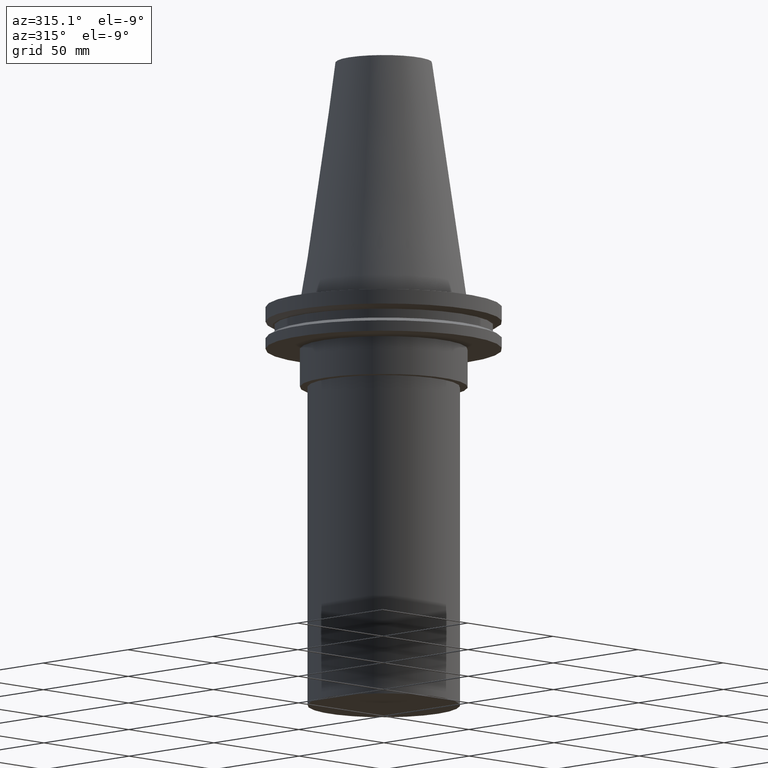
[diagram: clean part render]
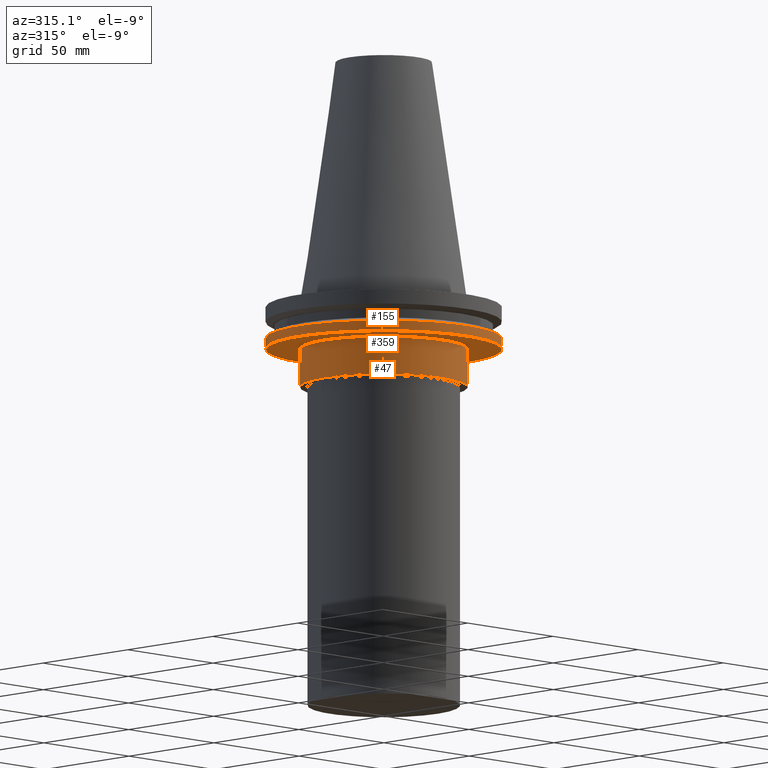
[diagram: same view with one multi-face feature highlighted, each face labeled with its STEP entity id]
A machine part, auxiliary view. The highlighted faces form ONE feature: a stepped (counterbored) hole: 2 coaxial cylindrical walls of radii 34.925 -> 49.215 mm joined by 1 annular planar shoulder face(s). The faces share edges in the B-rep.
Their STEP definitions:
[1] entity #155 (Cylinder):
#15 = DIRECTION ( 'NONE',  ( -0.000000000000000000, -0.000000000000000000, 1.000000000000000000 ) ) ;
#63 = DIRECTION ( 'NONE',  ( -0.000000000000000000, -0.000000000000000000, 1.000000000000000000 ) ) ;
#153 = CIRCLE ( 'NONE', #227, 49.21499999999998920 ) ;
#155 = ADVANCED_FACE ( 'NONE', ( #314, #368 ), #371, .T. ) ;
#160 = AXIS2_PLACEMENT_3D ( 'NONE', #185, #63, #183 ) ;
#163 = CARTESIAN_POINT ( 'NONE',  ( 49.21499999999998920, 0.000000000000000000, -14.65761014474876944 ) ) ;
#182 = ORIENTED_EDGE ( 'NONE', *, *, #265, .F. ) ;
#183 = DIRECTION ( 'NONE',  ( 1.000000000000000000, 0.000000000000000000, 0.000000000000000000 ) ) ;
#185 = CARTESIAN_POINT ( 'NONE',  ( 0.000000000000000000, 0.000000000000000000, 101.5999999999999943 ) ) ;
#190 = CARTESIAN_POINT ( 'NONE',  ( 49.21499999999998920, 0.000000000000000000, -19.04999999999999716 ) ) ;
#192 = DIRECTION ( 'NONE',  ( 1.000000000000000000, 0.000000000000000000, 0.000000000000000000 ) ) ;
#222 = VERTEX_POINT ( 'NONE', #163 ) ;
#227 = AXIS2_PLACEMENT_3D ( 'NONE', #317, #284, #192 ) ;
#241 = EDGE_LOOP ( 'NONE', ( #182 ) ) ;
#255 = EDGE_LOOP ( 'NONE', ( #370 ) ) ;
#265 = EDGE_CURVE ( 'NONE', #222, #222, #153, .T. ) ;
#284 = DIRECTION ( 'NONE',  ( -0.000000000000000000, -0.000000000000000000, 1.000000000000000000 ) ) ;
#314 = FACE_OUTER_BOUND ( 'NONE', #241, .T. ) ;
#317 = CARTESIAN_POINT ( 'NONE',  ( 0.000000000000000000, 0.000000000000000000, -14.65761014474876944 ) ) ;
#318 = VERTEX_POINT ( 'NONE', #190 ) ;
#348 = CARTESIAN_POINT ( 'NONE',  ( 0.000000000000000000, 0.000000000000000000, -19.04999999999999716 ) ) ;
#350 = CIRCLE ( 'NONE', #379, 49.21499999999998920 ) ;
#364 = EDGE_CURVE ( 'NONE', #318, #318, #350, .T. ) ;
#368 = FACE_OUTER_BOUND ( 'NONE', #255, .T. ) ;
#370 = ORIENTED_EDGE ( 'NONE', *, *, #364, .T. ) ;
#371 = CYLINDRICAL_SURFACE ( 'NONE', #160, 49.21499999999998920 ) ;
#375 = DIRECTION ( 'NONE',  ( 1.000000000000000000, 0.000000000000000000, 0.000000000000000000 ) ) ;
#379 = AXIS2_PLACEMENT_3D ( 'NONE', #348, #15, #375 ) ;
[2] entity #47 (Cylinder):
#14 = CARTESIAN_POINT ( 'NONE',  ( 34.92499999999999716, 0.000000000000000000, -19.04999999999999716 ) ) ;
#20 = EDGE_CURVE ( 'NONE', #352, #352, #197, .T. ) ;
#27 = EDGE_LOOP ( 'NONE', ( #111 ) ) ;
#37 = EDGE_LOOP ( 'NONE', ( #117 ) ) ;
#42 = DIRECTION ( 'NONE',  ( 1.000000000000000000, 0.000000000000000000, 0.000000000000000000 ) ) ;
#44 = AXIS2_PLACEMENT_3D ( 'NONE', #211, #55, #334 ) ;
#47 = ADVANCED_FACE ( 'NONE', ( #325, #204 ), #299, .T. ) ;
#55 = DIRECTION ( 'NONE',  ( -0.000000000000000000, -0.000000000000000000, 1.000000000000000000 ) ) ;
#111 = ORIENTED_EDGE ( 'NONE', *, *, #20, .F. ) ;
#117 = ORIENTED_EDGE ( 'NONE', *, *, #290, .T. ) ;
#134 = CARTESIAN_POINT ( 'NONE',  ( 34.92499999999999716, 0.000000000000000000, -35.00000000000000000 ) ) ;
#148 = CARTESIAN_POINT ( 'NONE',  ( 0.000000000000000000, 0.000000000000000000, -19.04999999999999716 ) ) ;
#181 = AXIS2_PLACEMENT_3D ( 'NONE', #148, #232, #202 ) ;
#193 = VERTEX_POINT ( 'NONE', #134 ) ;
#197 = CIRCLE ( 'NONE', #181, 34.92499999999999716 ) ;
#202 = DIRECTION ( 'NONE',  ( 1.000000000000000000, 0.000000000000000000, 0.000000000000000000 ) ) ;
#204 = FACE_OUTER_BOUND ( 'NONE', #37, .T. ) ;
#211 = CARTESIAN_POINT ( 'NONE',  ( 0.000000000000000000, 0.000000000000000000, 101.5999999999999943 ) ) ;
#223 = CARTESIAN_POINT ( 'NONE',  ( 0.000000000000000000, 0.000000000000000000, -35.00000000000000000 ) ) ;
#232 = DIRECTION ( 'NONE',  ( -0.000000000000000000, -0.000000000000000000, 1.000000000000000000 ) ) ;
#290 = EDGE_CURVE ( 'NONE', #193, #193, #342, .T. ) ;
#299 = CYLINDRICAL_SURFACE ( 'NONE', #44, 34.92499999999999716 ) ;
#307 = AXIS2_PLACEMENT_3D ( 'NONE', #223, #351, #42 ) ;
#325 = FACE_OUTER_BOUND ( 'NONE', #27, .T. ) ;
#334 = DIRECTION ( 'NONE',  ( 1.000000000000000000, 0.000000000000000000, 0.000000000000000000 ) ) ;
#342 = CIRCLE ( 'NONE', #307, 34.92499999999999716 ) ;
#351 = DIRECTION ( 'NONE',  ( -0.000000000000000000, -0.000000000000000000, 1.000000000000000000 ) ) ;
#352 = VERTEX_POINT ( 'NONE', #14 ) ;
[3] entity #359 (Plane):
#2 = EDGE_LOOP ( 'NONE', ( #119 ) ) ;
#12 = CARTESIAN_POINT ( 'NONE',  ( 0.000000000000000000, 49.21499999999998920, -19.04999999999999716 ) ) ;
#14 = CARTESIAN_POINT ( 'NONE',  ( 34.92499999999999716, 0.000000000000000000, -19.04999999999999716 ) ) ;
#15 = DIRECTION ( 'NONE',  ( -0.000000000000000000, -0.000000000000000000, 1.000000000000000000 ) ) ;
#20 = EDGE_CURVE ( 'NONE', #352, #352, #197, .T. ) ;
#100 = PLANE ( 'NONE',  #213 ) ;
#119 = ORIENTED_EDGE ( 'NONE', *, *, #20, .T. ) ;
#131 = FACE_OUTER_BOUND ( 'NONE', #172, .T. ) ;
#148 = CARTESIAN_POINT ( 'NONE',  ( 0.000000000000000000, 0.000000000000000000, -19.04999999999999716 ) ) ;
#172 = EDGE_LOOP ( 'NONE', ( #388 ) ) ;
#181 = AXIS2_PLACEMENT_3D ( 'NONE', #148, #232, #202 ) ;
#190 = CARTESIAN_POINT ( 'NONE',  ( 49.21499999999998920, 0.000000000000000000, -19.04999999999999716 ) ) ;
#197 = CIRCLE ( 'NONE', #181, 34.92499999999999716 ) ;
#198 = DIRECTION ( 'NONE',  ( 0.000000000000000000, -0.000000000000000000, 1.000000000000000000 ) ) ;
#202 = DIRECTION ( 'NONE',  ( 1.000000000000000000, 0.000000000000000000, 0.000000000000000000 ) ) ;
#213 = AXIS2_PLACEMENT_3D ( 'NONE', #12, #198, #260 ) ;
#232 = DIRECTION ( 'NONE',  ( -0.000000000000000000, -0.000000000000000000, 1.000000000000000000 ) ) ;
#260 = DIRECTION ( 'NONE',  ( 1.000000000000000000, 0.000000000000000000, 0.000000000000000000 ) ) ;
#288 = FACE_BOUND ( 'NONE', #2, .T. ) ;
#318 = VERTEX_POINT ( 'NONE', #190 ) ;
#348 = CARTESIAN_POINT ( 'NONE',  ( 0.000000000000000000, 0.000000000000000000, -19.04999999999999716 ) ) ;
#350 = CIRCLE ( 'NONE', #379, 49.21499999999998920 ) ;
#352 = VERTEX_POINT ( 'NONE', #14 ) ;
#359 = ADVANCED_FACE ( 'NONE', ( #131, #288 ), #100, .F. ) ;
#364 = EDGE_CURVE ( 'NONE', #318, #318, #350, .T. ) ;
#375 = DIRECTION ( 'NONE',  ( 1.000000000000000000, 0.000000000000000000, 0.000000000000000000 ) ) ;
#379 = AXIS2_PLACEMENT_3D ( 'NONE', #348, #15, #375 ) ;
#388 = ORIENTED_EDGE ( 'NONE', *, *, #364, .F. ) ;